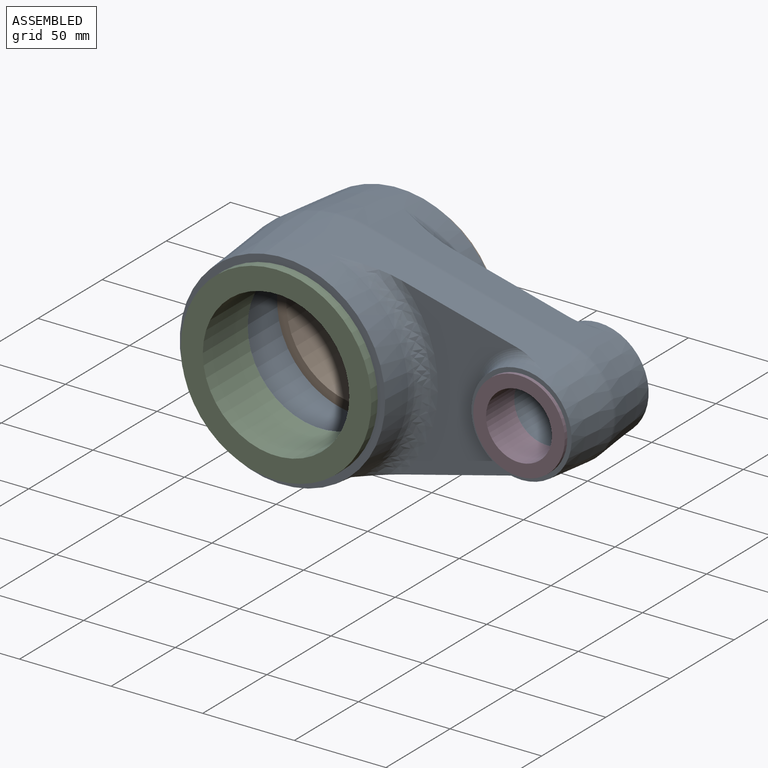
[diagram: assembled view]
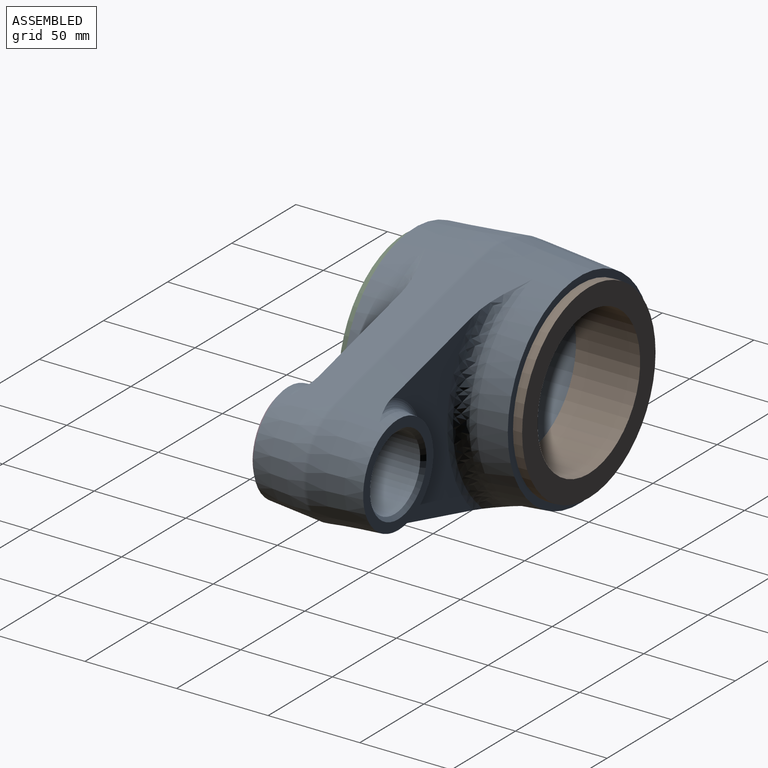
[diagram: assembled view, second angle]
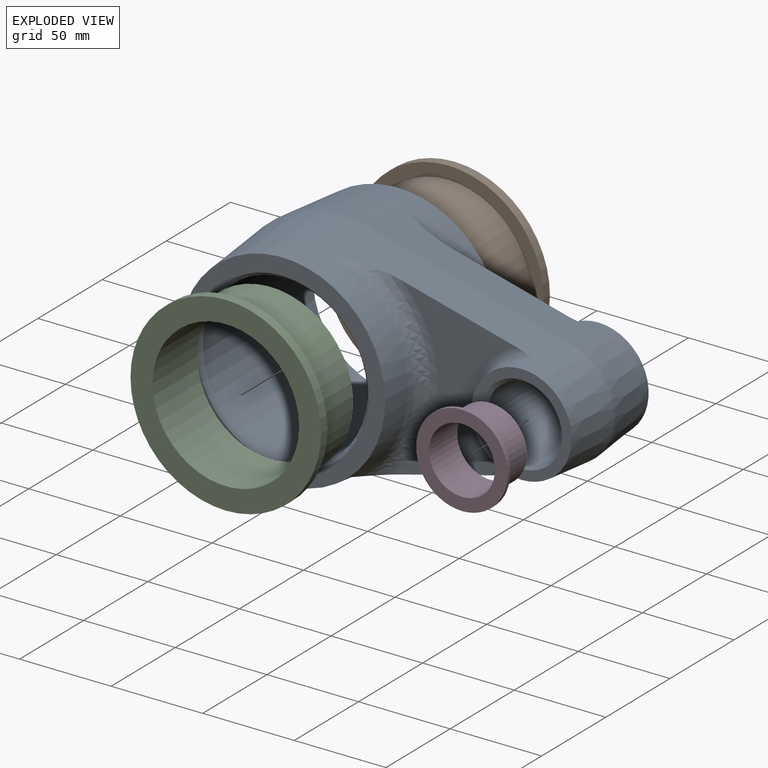
[diagram: exploded view]
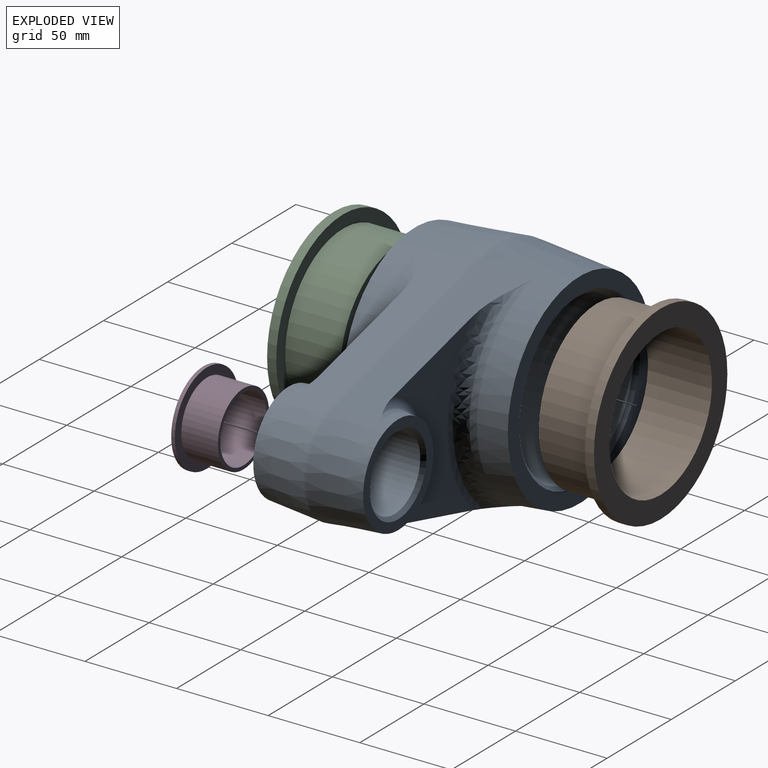
[diagram: exploded view, second angle]
ASSEMBLY  parts=4 mates=5
PART A: 30 faces, bbox 219.8x110.5x133.6 mm
  f0: plane 95.86x63.46mm, normal (0,-1,0), area 2618.8mm2, adj f2,f4,f10,f11
  f1: cone r=60mm half-angle=5deg, axis (0,1,0), area 9368.8mm2, adj f2,f4,f6,f7,f27
  f2: plane 115.6x33.53mm, normal (0.25,-0.09,-0.96), area 2393mm2, adj f0,f1,f3,f10,f11,f29
  f3: cone r=30mm half-angle=5deg, axis (0,1,0), area 2757.9mm2, adj f2,f4,f5,f11,f28
  f4: plane 115.23x33.16mm, normal (0.25,-0.09,0.96), area 2375.8mm2, adj f0,f1,f3,f10,f11,f26
  f5: plane 54.75x54.75mm, normal (0,-1,0), area 833.8mm2, adj f3,f13
  f6: bspline ~116.19x54.01mm, area 2383.8mm2, adj f1,f7,f10
  f7: plane 112.25x112.25mm, normal (0,-1,0), area 2934mm2, adj f1,f6,f12
  f8: cylinder r=20mm len=56mm, axis (0,-1,0), area 7037.2mm2, adj f13,f25
  f9: cylinder r=45mm len=90mm, axis (0,-1,0), area 24315.9mm2, adj f12,f24
  f10: bspline ~131.16x54.48mm, area 1904.4mm2, adj f0,f2,f4,f6
  f11: torus R=32.83mm, axis (0,-1,0), area 683.5mm2, adj f0,f2,f3,f4
  f12: cone r=45mm half-angle=45deg, axis (0,-1,0), area 817.5mm2, adj f7,f9
  f13: cone r=20mm half-angle=45deg, axis (0,-1,0), area 373.2mm2, adj f5,f8
  f14: plane 95.86x63.46mm, normal (0,1,0), area 2618.8mm2, adj f16,f18,f22,f23
  f15: cone r=60mm half-angle=5deg, axis (0,-1,0), area 9368.8mm2, adj f16,f18,f20,f21,f27
  f16: plane 115.6x33.53mm, normal (0.25,0.09,-0.96), area 2393mm2, adj f14,f15,f17,f22,f23,f29
  f17: cone r=30mm half-angle=5deg, axis (0,-1,0), area 2757.9mm2, adj f16,f18,f19,f23,f28
  f18: plane 115.23x33.16mm, normal (0.25,0.09,0.96), area 2375.8mm2, adj f14,f15,f17,f22,f23,f26
  f19: plane 54.75x54.75mm, normal (0,1,0), area 833.8mm2, adj f17,f25
  f20: bspline ~116.19x54.01mm, area 2383.8mm2, adj f15,f21,f22
  f21: plane 112.25x112.25mm, normal (0,1,0), area 2934mm2, adj f15,f20,f24
  f22: bspline ~131.16x54.48mm, area 1904.4mm2, adj f14,f16,f18,f20
  f23: torus R=32.83mm, axis (0,1,0), area 683.5mm2, adj f14,f16,f17,f18
  f24: cone r=45mm half-angle=45deg, axis (0,1,0), area 817.5mm2, adj f9,f21
  f25: cone r=20mm half-angle=45deg, axis (0,1,0), area 373.2mm2, adj f8,f19
  f26: cylinder r=10mm len=112.51mm, axis (0.97,0,-0.25), area 202.8mm2, adj f4,f18,f27,f28
  f27: torus R=49.96mm, axis (0,1,0), area 381.6mm2, adj f1,f15,f26,f29
  f28: torus R=19.96mm, axis (0,1,0), area 137.8mm2, adj f3,f17,f26,f29
  f29: cylinder r=10mm len=112.51mm, axis (0.97,0,0.25), area 202.8mm2, adj f2,f16,f27,f28
PART B: 6 faces, bbox 35x104x104 mm
  f0: cylinder r=45mm len=90mm, axis (1,0,0), area 8482.3mm2, adj f1,f5
  f1: plane 90x90mm, normal (-1,0,0), area 1335.2mm2, adj f0,f2
  f2: cylinder r=40mm len=80mm, axis (1,0,0), area 8796.5mm2, adj f1,f3
  f3: plane 104x104mm, normal (1,0,0), area 3468.3mm2, adj f2,f4
  f4: cylinder r=52mm len=104mm, axis (1,0,0), area 1633.6mm2, adj f3,f5
  f5: plane 104x104mm, normal (-1,0,0), area 2133.1mm2, adj f0,f4
PART C: same geometry as B
PART D: 6 faces, bbox 22x50x50 mm
  f0: cylinder r=20mm len=40mm, axis (1,0,0), area 2513.3mm2, adj f1,f5
  f1: plane 40x40mm, normal (-1,0,0), area 238.8mm2, adj f0,f2
  f2: cylinder r=18mm len=36mm, axis (1,0,0), area 2488.1mm2, adj f1,f3
  f3: plane 50x50mm, normal (1,0,0), area 945.6mm2, adj f2,f4
  f4: cylinder r=25mm len=50mm, axis (1,0,0), area 314.2mm2, adj f3,f5
  f5: plane 50x50mm, normal (-1,0,0), area 706.9mm2, adj f0,f4
PLACE A at identity fixed
PLACE B rot(axis=(0.71,0.71,0),180deg) t=(0,45,0)mm
PLACE C rot(axis=(-0.58,0.58,-0.58),120deg) t=(0,-45,0)mm
PLACE D rot(axis=(-0.58,0.58,-0.58),120deg) t=(120,-30,0)mm
MATE slider A.f9 <-> B.f0  axis (0,-1,0) through (0,43,0)mm
MATE planar A.f3 <-> D.f0  axis (0,-1,0) through (120,-30,0)mm
MATE planar A.f9 <-> C.f0  axis (0,-1,0) through (0,-45,0)mm
MATE slider A.f9 <-> C.f0  axis (0,-1,0) through (0,-43,0)mm
MATE planar B.f0 <-> A.f9  axis (0,-1,0) through (0,45,0)mm
